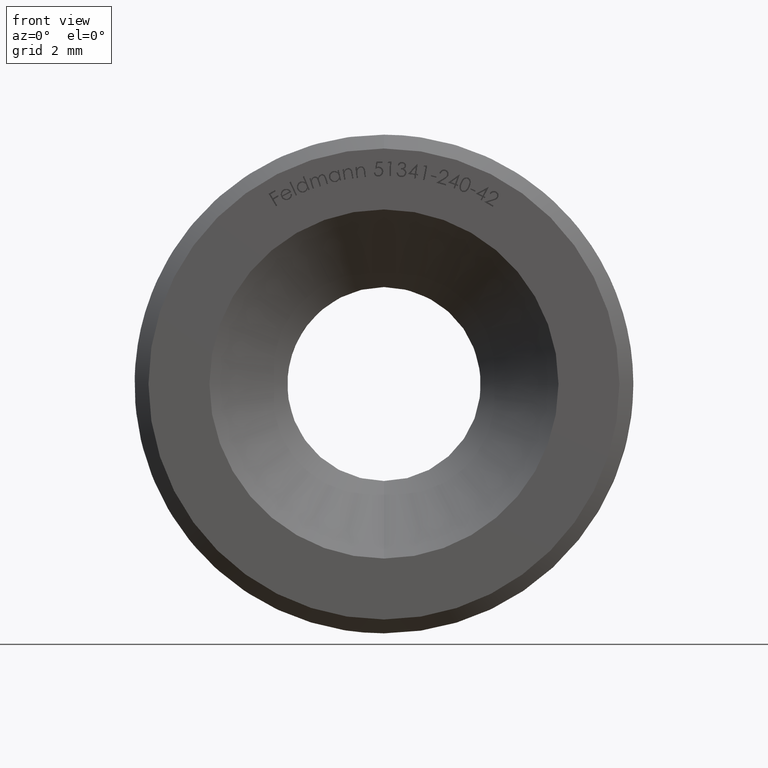
[diagram: clean part render]
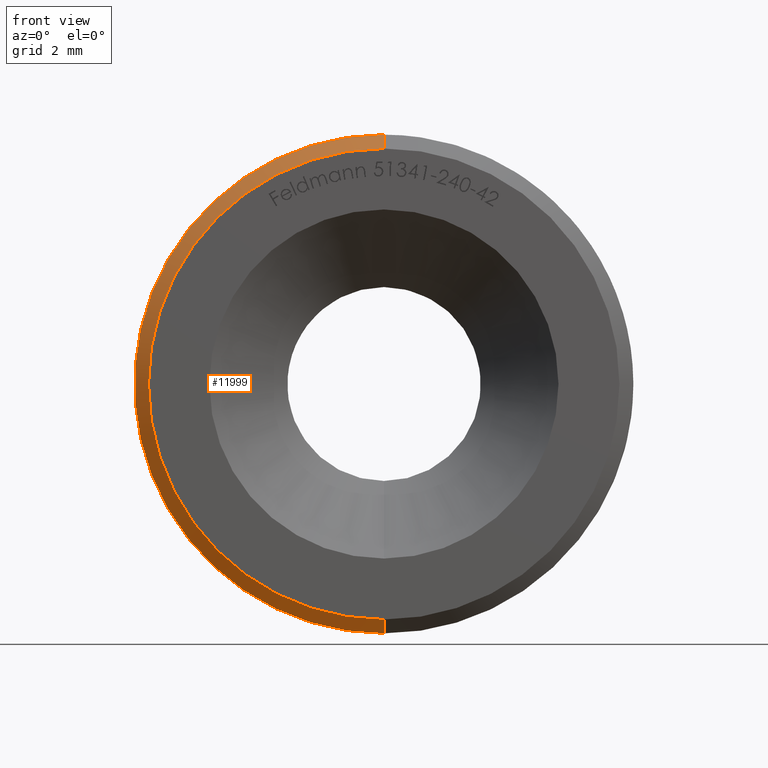
[diagram: same view with one face highlighted and labeled with its STEP entity id]
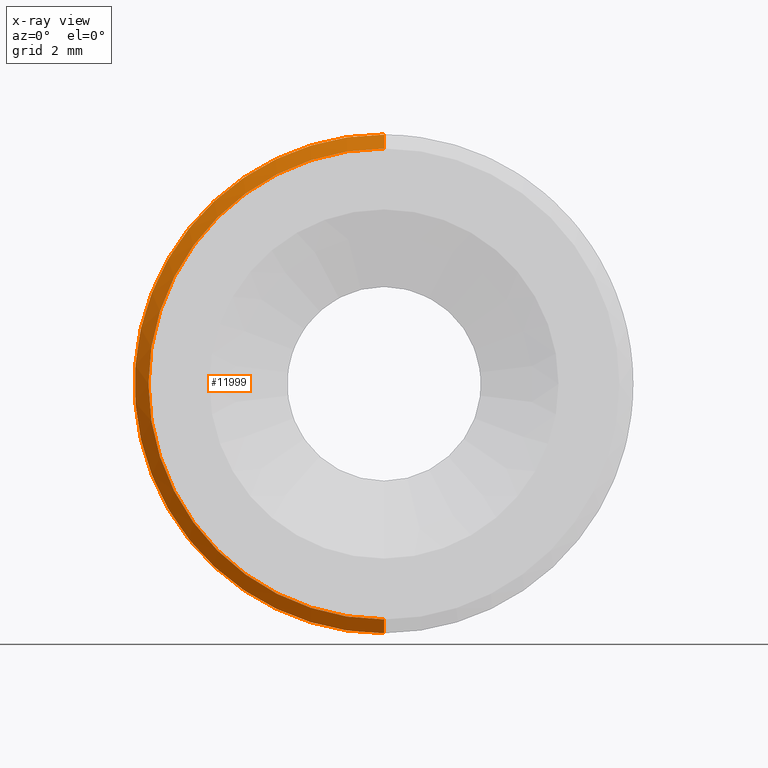
[diagram: x-ray of the same camera — body ghosted, the highlighted face saturated]
A machine part, front view. The second image highlights one B-rep face of the part: STEP entity #11999.
The next image is the same camera in x-ray: the body ghosted, the highlighted face saturated — about 0% of this face is hidden behind the body in this view.
In plain terms, the highlighted conical surface has half-angle 45 deg.
Its self-contained STEP definition (entity closure, byte-faithful):
#602 = VECTOR ( 'NONE', #6966, 1000.000000000000114 ) ;
#735 = ORIENTED_EDGE ( 'NONE', *, *, #7565, .F. ) ;
#1182 = EDGE_CURVE ( 'NONE', #8345, #6302, #11291, .T. ) ;
#1238 = ORIENTED_EDGE ( 'NONE', *, *, #12429, .F. ) ;
#1341 = VERTEX_POINT ( 'NONE', #6113 ) ;
#1375 = AXIS2_PLACEMENT_3D ( 'NONE', #3811, #6856, #13003 ) ;
#1631 = DIRECTION ( 'NONE',  ( 0.000000000000000000, 0.7071067811865474617, 0.7071067811865474617 ) ) ;
#1910 = CARTESIAN_POINT ( 'NONE',  ( 1.102182119232617714E-15, 0.5000000000000056621, 9.000000000000000000 ) ) ;
#2008 = CIRCLE ( 'NONE', #1375, 9.000000000000000000 ) ;
#3556 = CARTESIAN_POINT ( 'NONE',  ( 0.000000000000000000, 0.000000000000000000, 0.000000000000000000 ) ) ;
#3811 = CARTESIAN_POINT ( 'NONE',  ( 0.000000000000000000, 0.5000000000000056621, 0.000000000000000000 ) ) ;
#5702 = ORIENTED_EDGE ( 'NONE', *, *, #9005, .T. ) ;
#6113 = CARTESIAN_POINT ( 'NONE',  ( 0.000000000000000000, 0.000000000000000000, 8.499999999999992895 ) ) ;
#6238 = AXIS2_PLACEMENT_3D ( 'NONE', #7170, #8356, #10242 ) ;
#6302 = VERTEX_POINT ( 'NONE', #11376 ) ;
#6661 = LINE ( 'NONE', #11958, #8265 ) ;
#6795 = AXIS2_PLACEMENT_3D ( 'NONE', #3556, #7576, #7759 ) ;
#6856 = DIRECTION ( 'NONE',  ( -0.000000000000000000, 1.000000000000000000, -0.000000000000000000 ) ) ;
#6966 = DIRECTION ( 'NONE',  ( 8.659560562354932858E-17, 0.7071067811865474617, -0.7071067811865474617 ) ) ;
#7103 = CARTESIAN_POINT ( 'NONE',  ( 1.102182119232617714E-15, 0.5000000000000056621, -9.000000000000000000 ) ) ;
#7170 = CARTESIAN_POINT ( 'NONE',  ( 0.000000000000000000, 0.5000000000000056621, 0.000000000000000000 ) ) ;
#7211 = VERTEX_POINT ( 'NONE', #1910 ) ;
#7565 = EDGE_CURVE ( 'NONE', #1341, #8345, #7804, .T. ) ;
#7576 = DIRECTION ( 'NONE',  ( -0.000000000000000000, -1.000000000000000000, -0.000000000000000000 ) ) ;
#7759 = DIRECTION ( 'NONE',  ( 0.000000000000000000, 0.000000000000000000, 1.000000000000000000 ) ) ;
#7804 = CIRCLE ( 'NONE', #6795, 8.499999999999992895 ) ;
#7972 = CONICAL_SURFACE ( 'NONE', #6238, 9.000000000000000000, 0.7853981633974482790 ) ;
#8265 = VECTOR ( 'NONE', #1631, 1000.000000000000114 ) ;
#8345 = VERTEX_POINT ( 'NONE', #12124 ) ;
#8356 = DIRECTION ( 'NONE',  ( -0.000000000000000000, 1.000000000000000000, -0.000000000000000000 ) ) ;
#9005 = EDGE_CURVE ( 'NONE', #1341, #7211, #6661, .T. ) ;
#9478 = EDGE_LOOP ( 'NONE', ( #10304, #735, #5702, #1238 ) ) ;
#10242 = DIRECTION ( 'NONE',  ( 0.000000000000000000, 0.000000000000000000, 1.000000000000000000 ) ) ;
#10304 = ORIENTED_EDGE ( 'NONE', *, *, #1182, .F. ) ;
#10711 = FACE_OUTER_BOUND ( 'NONE', #9478, .T. ) ;
#11291 = LINE ( 'NONE', #7103, #602 ) ;
#11376 = CARTESIAN_POINT ( 'NONE',  ( 0.000000000000000000, 0.5000000000000056621, -9.000000000000000000 ) ) ;
#11958 = CARTESIAN_POINT ( 'NONE',  ( 0.000000000000000000, 0.5000000000000056621, 9.000000000000000000 ) ) ;
#11999 = ADVANCED_FACE ( 'NONE', ( #10711 ), #7972, .T. ) ;
#12124 = CARTESIAN_POINT ( 'NONE',  ( 1.071565949253933532E-15, 0.000000000000000000, -8.499999999999992895 ) ) ;
#12429 = EDGE_CURVE ( 'NONE', #6302, #7211, #2008, .T. ) ;
#13003 = DIRECTION ( 'NONE',  ( 0.000000000000000000, 0.000000000000000000, 1.000000000000000000 ) ) ;